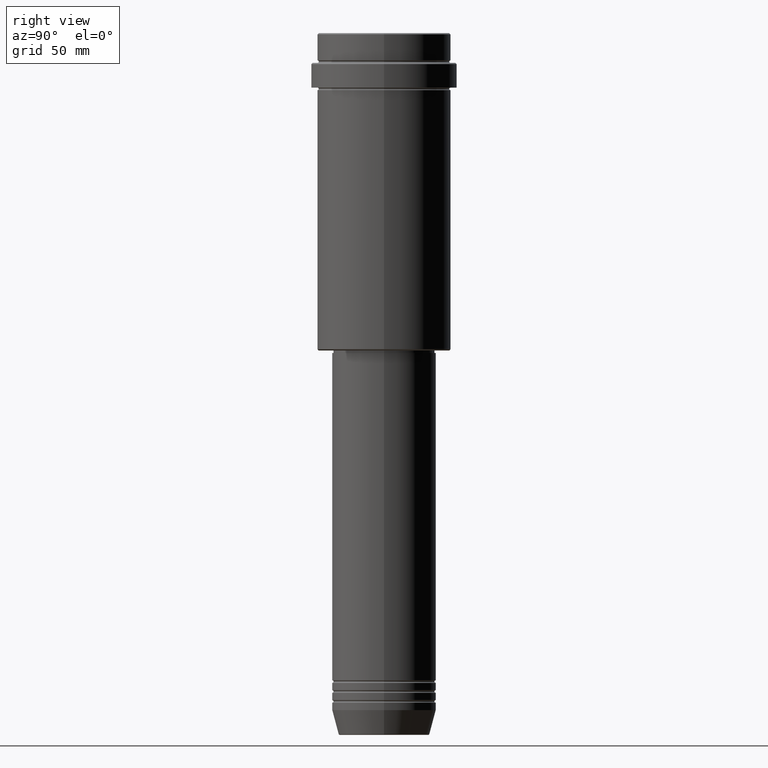
[diagram: clean part render]
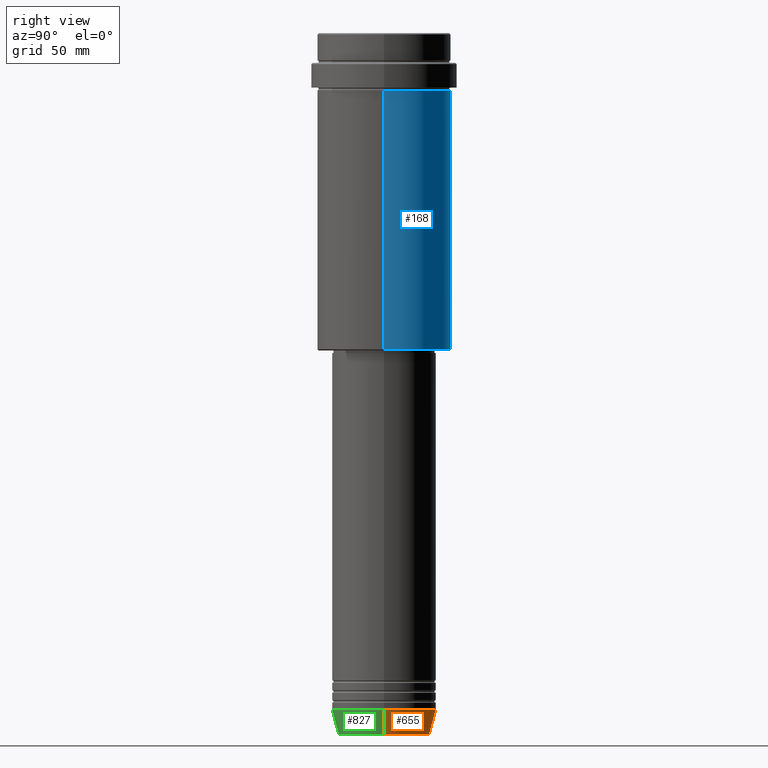
[diagram: same view with three faces highlighted in distinct colors, each labeled with its STEP entity id]
A machine part, right view with three faces highlighted in distinct colors.
Their STEP definitions:

[orange] entity #655 — the highlighted conical surface has half-angle 15 deg.
#12 = DIRECTION ( 'NONE',  ( 1.000000000000000000, 0.000000000000000000, 0.000000000000000000 ) ) ;
#19 = ORIENTED_EDGE ( 'NONE', *, *, #765, .F. ) ;
#20 = CARTESIAN_POINT ( 'NONE',  ( 21.00000000000000000, 0.000000000000000000, -273.0000000000000000 ) ) ;
#71 = AXIS2_PLACEMENT_3D ( 'NONE', #1048, #294, #727 ) ;
#137 = CARTESIAN_POINT ( 'NONE',  ( 21.00000000000000000, 0.000000000000000000, -273.0000000000000000 ) ) ;
#190 = CARTESIAN_POINT ( 'NONE',  ( 18.41980749484383750, 0.000000000000000000, -282.6294095225512706 ) ) ;
#191 = VERTEX_POINT ( 'NONE', #1008 ) ;
#233 = DIRECTION ( 'NONE',  ( -0.000000000000000000, -0.000000000000000000, 1.000000000000000000 ) ) ;
#239 = EDGE_CURVE ( 'NONE', #1090, #275, #1224, .T. ) ;
#273 = VERTEX_POINT ( 'NONE', #137 ) ;
#275 = VERTEX_POINT ( 'NONE', #984 ) ;
#294 = DIRECTION ( 'NONE',  ( -0.000000000000000000, -0.000000000000000000, 1.000000000000000000 ) ) ;
#350 = DIRECTION ( 'NONE',  ( -0.000000000000000000, -0.000000000000000000, 1.000000000000000000 ) ) ;
#351 = EDGE_LOOP ( 'NONE', ( #1233, #850, #1346, #19 ) ) ;
#354 = DIRECTION ( 'NONE',  ( -0.2588190451025211836, 3.169619151431770488E-17, 0.9659258262890680902 ) ) ;
#388 = LINE ( 'NONE', #1235, #943 ) ;
#500 = AXIS2_PLACEMENT_3D ( 'NONE', #564, #350, #12 ) ;
#564 = CARTESIAN_POINT ( 'NONE',  ( 0.000000000000000000, 0.000000000000000000, -282.6294095225512706 ) ) ;
#584 = AXIS2_PLACEMENT_3D ( 'NONE', #1415, #233, #871 ) ;
#635 = CONICAL_SURFACE ( 'NONE', #71, 21.00000000000000000, 0.2617993877991499074 ) ;
#655 = ADVANCED_FACE ( 'NONE', ( #841 ), #635, .T. ) ;
#673 = EDGE_CURVE ( 'NONE', #273, #191, #1202, .T. ) ;
#727 = DIRECTION ( 'NONE',  ( 1.000000000000000000, 0.000000000000000000, 0.000000000000000000 ) ) ;
#765 = EDGE_CURVE ( 'NONE', #1090, #273, #1303, .T. ) ;
#841 = FACE_OUTER_BOUND ( 'NONE', #351, .T. ) ;
#850 = ORIENTED_EDGE ( 'NONE', *, *, #949, .T. ) ;
#862 = DIRECTION ( 'NONE',  ( 0.2588190451025211836, 0.000000000000000000, 0.9659258262890680902 ) ) ;
#871 = DIRECTION ( 'NONE',  ( 1.000000000000000000, 0.000000000000000000, 0.000000000000000000 ) ) ;
#943 = VECTOR ( 'NONE', #354, 1000.000000000000114 ) ;
#949 = EDGE_CURVE ( 'NONE', #275, #191, #388, .T. ) ;
#984 = CARTESIAN_POINT ( 'NONE',  ( -18.41980749484383750, 2.413767053578267458E-15, -282.6294095225512706 ) ) ;
#1008 = CARTESIAN_POINT ( 'NONE',  ( -21.00000000000000000, 2.571758278209441661E-15, -273.0000000000000000 ) ) ;
#1048 = CARTESIAN_POINT ( 'NONE',  ( 0.000000000000000000, 0.000000000000000000, -273.0000000000000000 ) ) ;
#1090 = VERTEX_POINT ( 'NONE', #190 ) ;
#1202 = CIRCLE ( 'NONE', #584, 21.00000000000000000 ) ;
#1224 = CIRCLE ( 'NONE', #500, 18.41980749484383750 ) ;
#1228 = VECTOR ( 'NONE', #862, 1000.000000000000114 ) ;
#1233 = ORIENTED_EDGE ( 'NONE', *, *, #239, .T. ) ;
#1235 = CARTESIAN_POINT ( 'NONE',  ( -21.00000000000000000, 2.571758278209441661E-15, -273.0000000000000000 ) ) ;
#1303 = LINE ( 'NONE', #20, #1228 ) ;
#1346 = ORIENTED_EDGE ( 'NONE', *, *, #673, .F. ) ;
#1415 = CARTESIAN_POINT ( 'NONE',  ( 0.000000000000000000, 0.000000000000000000, -273.0000000000000000 ) ) ;

[blue] entity #168 — the highlighted cylindrical surface (partial cylindrical patch) has radius 27 mm, axis along (-0, -0, 1).
#5 = DIRECTION ( 'NONE',  ( 1.000000000000000000, 0.000000000000000000, 0.000000000000000000 ) ) ;
#62 = DIRECTION ( 'NONE',  ( -0.000000000000000000, -0.000000000000000000, 1.000000000000000000 ) ) ;
#99 = ORIENTED_EDGE ( 'NONE', *, *, #364, .F. ) ;
#109 = CIRCLE ( 'NONE', #450, 27.00000000000000355 ) ;
#111 = VERTEX_POINT ( 'NONE', #1396 ) ;
#117 = DIRECTION ( 'NONE',  ( -0.000000000000000000, -0.000000000000000000, 1.000000000000000000 ) ) ;
#120 = CARTESIAN_POINT ( 'NONE',  ( 0.000000000000000000, 0.000000000000000000, -23.00000000000001421 ) ) ;
#136 = DIRECTION ( 'NONE',  ( -0.000000000000000000, -0.000000000000000000, 1.000000000000000000 ) ) ;
#168 = ADVANCED_FACE ( 'NONE', ( #728 ), #413, .T. ) ;
#205 = VECTOR ( 'NONE', #136, 1000.000000000000000 ) ;
#305 = CARTESIAN_POINT ( 'NONE',  ( 0.000000000000000000, 0.000000000000000000, 0.000000000000000000 ) ) ;
#341 = LINE ( 'NONE', #544, #205 ) ;
#349 = CARTESIAN_POINT ( 'NONE',  ( 27.00000000000000355, 0.000000000000000000, 0.000000000000000000 ) ) ;
#360 = VECTOR ( 'NONE', #117, 1000.000000000000000 ) ;
#364 = EDGE_CURVE ( 'NONE', #489, #111, #1201, .T. ) ;
#398 = CARTESIAN_POINT ( 'NONE',  ( 27.00000000000000355, 0.000000000000000000, -127.5000000000000568 ) ) ;
#413 = CYLINDRICAL_SURFACE ( 'NONE', #1386, 27.00000000000000355 ) ;
#450 = AXIS2_PLACEMENT_3D ( 'NONE', #962, #540, #1404 ) ;
#489 = VERTEX_POINT ( 'NONE', #916 ) ;
#498 = DIRECTION ( 'NONE',  ( 1.000000000000000000, 0.000000000000000000, 0.000000000000000000 ) ) ;
#516 = CARTESIAN_POINT ( 'NONE',  ( -27.00000000000000355, 3.306546357697854128E-15, -127.5000000000000568 ) ) ;
#540 = DIRECTION ( 'NONE',  ( -0.000000000000000000, -0.000000000000000000, 1.000000000000000000 ) ) ;
#544 = CARTESIAN_POINT ( 'NONE',  ( -27.00000000000000355, 3.306546357697854128E-15, 0.000000000000000000 ) ) ;
#550 = DIRECTION ( 'NONE',  ( -0.000000000000000000, -0.000000000000000000, 1.000000000000000000 ) ) ;
#616 = ORIENTED_EDGE ( 'NONE', *, *, #737, .T. ) ;
#637 = VERTEX_POINT ( 'NONE', #398 ) ;
#728 = FACE_OUTER_BOUND ( 'NONE', #1126, .T. ) ;
#737 = EDGE_CURVE ( 'NONE', #1145, #111, #341, .T. ) ;
#778 = EDGE_CURVE ( 'NONE', #637, #489, #996, .T. ) ;
#916 = CARTESIAN_POINT ( 'NONE',  ( 27.00000000000000355, 0.000000000000000000, -23.00000000000001421 ) ) ;
#962 = CARTESIAN_POINT ( 'NONE',  ( 0.000000000000000000, 0.000000000000000000, -127.5000000000000568 ) ) ;
#996 = LINE ( 'NONE', #349, #360 ) ;
#1028 = ORIENTED_EDGE ( 'NONE', *, *, #778, .F. ) ;
#1113 = ORIENTED_EDGE ( 'NONE', *, *, #1212, .T. ) ;
#1126 = EDGE_LOOP ( 'NONE', ( #1113, #616, #99, #1028 ) ) ;
#1135 = AXIS2_PLACEMENT_3D ( 'NONE', #120, #550, #5 ) ;
#1145 = VERTEX_POINT ( 'NONE', #516 ) ;
#1201 = CIRCLE ( 'NONE', #1135, 27.00000000000000355 ) ;
#1212 = EDGE_CURVE ( 'NONE', #637, #1145, #109, .T. ) ;
#1386 = AXIS2_PLACEMENT_3D ( 'NONE', #305, #62, #498 ) ;
#1396 = CARTESIAN_POINT ( 'NONE',  ( -27.00000000000000355, 3.306546357697854128E-15, -23.00000000000001421 ) ) ;
#1404 = DIRECTION ( 'NONE',  ( -1.000000000000000000, 0.000000000000000000, 0.000000000000000000 ) ) ;

[green] entity #827 — the highlighted conical surface has half-angle 15 deg.
#20 = CARTESIAN_POINT ( 'NONE',  ( 21.00000000000000000, 0.000000000000000000, -273.0000000000000000 ) ) ;
#36 = CONICAL_SURFACE ( 'NONE', #1313, 21.00000000000000000, 0.2617993877991499074 ) ;
#102 = ORIENTED_EDGE ( 'NONE', *, *, #949, .F. ) ;
#107 = FACE_OUTER_BOUND ( 'NONE', #662, .T. ) ;
#137 = CARTESIAN_POINT ( 'NONE',  ( 21.00000000000000000, 0.000000000000000000, -273.0000000000000000 ) ) ;
#163 = DIRECTION ( 'NONE',  ( 1.000000000000000000, 0.000000000000000000, 0.000000000000000000 ) ) ;
#190 = CARTESIAN_POINT ( 'NONE',  ( 18.41980749484383750, 0.000000000000000000, -282.6294095225512706 ) ) ;
#191 = VERTEX_POINT ( 'NONE', #1008 ) ;
#194 = EDGE_CURVE ( 'NONE', #275, #1090, #522, .T. ) ;
#251 = ORIENTED_EDGE ( 'NONE', *, *, #194, .T. ) ;
#273 = VERTEX_POINT ( 'NONE', #137 ) ;
#275 = VERTEX_POINT ( 'NONE', #984 ) ;
#354 = DIRECTION ( 'NONE',  ( -0.2588190451025211836, 3.169619151431770488E-17, 0.9659258262890680902 ) ) ;
#388 = LINE ( 'NONE', #1235, #943 ) ;
#392 = EDGE_CURVE ( 'NONE', #191, #273, #563, .T. ) ;
#522 = CIRCLE ( 'NONE', #1295, 18.41980749484383750 ) ;
#549 = DIRECTION ( 'NONE',  ( 1.000000000000000000, 0.000000000000000000, 0.000000000000000000 ) ) ;
#563 = CIRCLE ( 'NONE', #857, 21.00000000000000000 ) ;
#652 = CARTESIAN_POINT ( 'NONE',  ( 0.000000000000000000, 0.000000000000000000, -273.0000000000000000 ) ) ;
#662 = EDGE_LOOP ( 'NONE', ( #102, #251, #961, #1298 ) ) ;
#704 = CARTESIAN_POINT ( 'NONE',  ( 0.000000000000000000, 0.000000000000000000, -282.6294095225512706 ) ) ;
#765 = EDGE_CURVE ( 'NONE', #1090, #273, #1303, .T. ) ;
#827 = ADVANCED_FACE ( 'NONE', ( #107 ), #36, .T. ) ;
#857 = AXIS2_PLACEMENT_3D ( 'NONE', #923, #909, #1149 ) ;
#862 = DIRECTION ( 'NONE',  ( 0.2588190451025211836, 0.000000000000000000, 0.9659258262890680902 ) ) ;
#909 = DIRECTION ( 'NONE',  ( -0.000000000000000000, -0.000000000000000000, 1.000000000000000000 ) ) ;
#923 = CARTESIAN_POINT ( 'NONE',  ( 0.000000000000000000, 0.000000000000000000, -273.0000000000000000 ) ) ;
#943 = VECTOR ( 'NONE', #354, 1000.000000000000114 ) ;
#949 = EDGE_CURVE ( 'NONE', #275, #191, #388, .T. ) ;
#961 = ORIENTED_EDGE ( 'NONE', *, *, #765, .T. ) ;
#984 = CARTESIAN_POINT ( 'NONE',  ( -18.41980749484383750, 2.413767053578267458E-15, -282.6294095225512706 ) ) ;
#1008 = CARTESIAN_POINT ( 'NONE',  ( -21.00000000000000000, 2.571758278209441661E-15, -273.0000000000000000 ) ) ;
#1016 = DIRECTION ( 'NONE',  ( -0.000000000000000000, -0.000000000000000000, 1.000000000000000000 ) ) ;
#1090 = VERTEX_POINT ( 'NONE', #190 ) ;
#1091 = DIRECTION ( 'NONE',  ( -0.000000000000000000, -0.000000000000000000, 1.000000000000000000 ) ) ;
#1149 = DIRECTION ( 'NONE',  ( 1.000000000000000000, 0.000000000000000000, 0.000000000000000000 ) ) ;
#1228 = VECTOR ( 'NONE', #862, 1000.000000000000114 ) ;
#1235 = CARTESIAN_POINT ( 'NONE',  ( -21.00000000000000000, 2.571758278209441661E-15, -273.0000000000000000 ) ) ;
#1295 = AXIS2_PLACEMENT_3D ( 'NONE', #704, #1016, #163 ) ;
#1298 = ORIENTED_EDGE ( 'NONE', *, *, #392, .F. ) ;
#1303 = LINE ( 'NONE', #20, #1228 ) ;
#1313 = AXIS2_PLACEMENT_3D ( 'NONE', #652, #1091, #549 ) ;